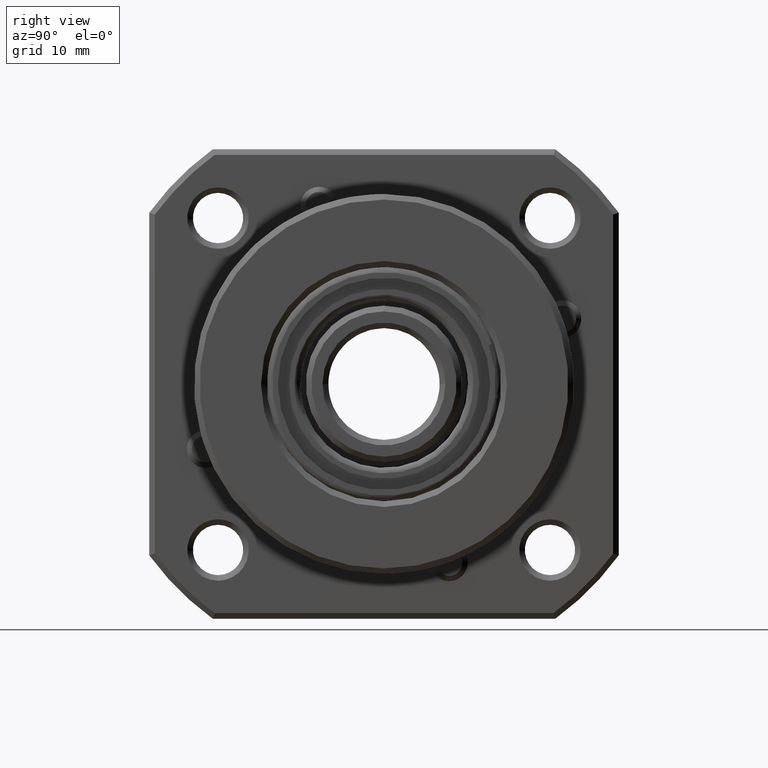
[diagram: clean part render]
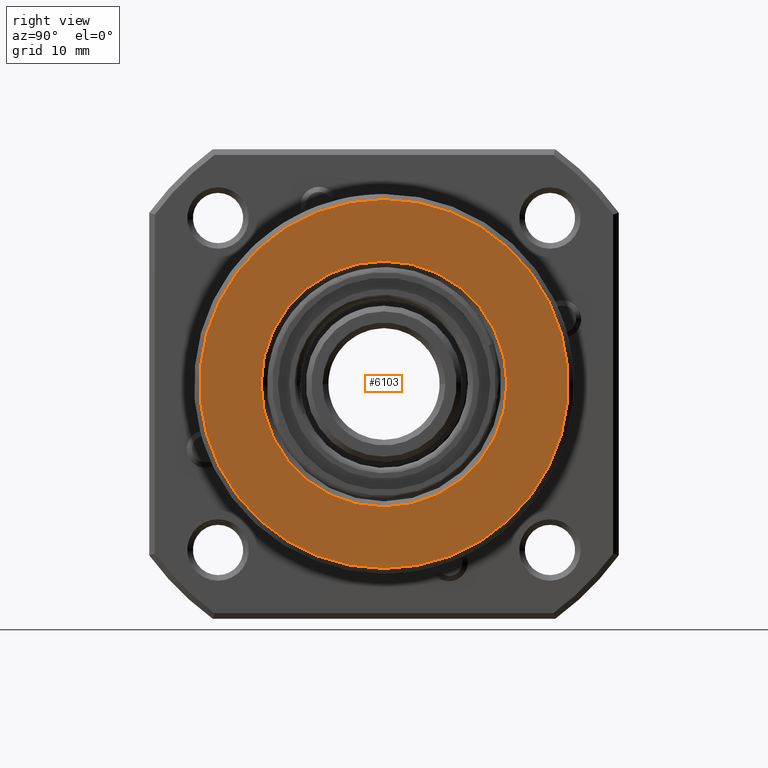
[diagram: same view with one face highlighted and labeled with its STEP entity id]
A machine part, right view. The second image highlights one B-rep face of the part: STEP entity #6103.
In plain terms, the highlighted planar face has unit normal (-1, 0, 0).
Its self-contained STEP definition (entity closure, byte-faithful):
#488 = CARTESIAN_POINT ( 'NONE',  ( 23.00000000000000000, 0.0000000000000000000, 0.0000000000000000000 ) ) ;
#784 = CARTESIAN_POINT ( 'NONE',  ( 23.00000000000000000, 2.051283388571816900E-015, -16.50000000000000400 ) ) ;
#949 = DIRECTION ( 'NONE',  ( -1.000000000000000000, 0.0000000000000000000, 0.0000000000000000000 ) ) ;
#1179 = CIRCLE ( 'NONE', #4072, 16.50000000000000400 ) ;
#2024 = DIRECTION ( 'NONE',  ( 0.0000000000000000000, 0.0000000000000000000, 1.000000000000000000 ) ) ;
#2394 = ORIENTED_EDGE ( 'NONE', *, *, #19220, .F. ) ;
#2860 = ORIENTED_EDGE ( 'NONE', *, *, #17204, .F. ) ;
#4072 = AXIS2_PLACEMENT_3D ( 'NONE', #9893, #949, #11359 ) ;
#4320 = AXIS2_PLACEMENT_3D ( 'NONE', #5649, #15869, #7091 ) ;
#4429 = CARTESIAN_POINT ( 'NONE',  ( 23.00000000000000000, 17.00000000000000000, 0.0000000000000000000 ) ) ;
#5002 = AXIS2_PLACEMENT_3D ( 'NONE', #17368, #8574, #18838 ) ;
#5364 = AXIS2_PLACEMENT_3D ( 'NONE', #4429, #5960, #16201 ) ;
#5649 = CARTESIAN_POINT ( 'NONE',  ( 23.00000000000000000, 0.0000000000000000000, 0.0000000000000000000 ) ) ;
#5960 = DIRECTION ( 'NONE',  ( -1.000000000000000000, 0.0000000000000000000, 0.0000000000000000000 ) ) ;
#6103 = ADVANCED_FACE ( 'NONE', ( #18198, #10878 ), #14705, .F. ) ;
#6400 = VERTEX_POINT ( 'NONE', #784 ) ;
#6956 = VERTEX_POINT ( 'NONE', #17102 ) ;
#7091 = DIRECTION ( 'NONE',  ( 0.0000000000000000000, 0.0000000000000000000, -1.000000000000000000 ) ) ;
#7307 = ORIENTED_EDGE ( 'NONE', *, *, #16732, .F. ) ;
#7491 = CIRCLE ( 'NONE', #4320, 11.00000000000001400 ) ;
#7989 = EDGE_LOOP ( 'NONE', ( #2860, #2394 ) ) ;
#8159 = EDGE_LOOP ( 'NONE', ( #7307, #10748 ) ) ;
#8538 = VERTEX_POINT ( 'NONE', #9300 ) ;
#8574 = DIRECTION ( 'NONE',  ( 1.000000000000000000, 0.0000000000000000000, 0.0000000000000000000 ) ) ;
#8589 = VERTEX_POINT ( 'NONE', #13836 ) ;
#9300 = CARTESIAN_POINT ( 'NONE',  ( 23.00000000000000000, 0.0000000000000000000, -11.00000000000001600 ) ) ;
#9893 = CARTESIAN_POINT ( 'NONE',  ( 23.00000000000000000, 0.0000000000000000000, 0.0000000000000000000 ) ) ;
#10748 = ORIENTED_EDGE ( 'NONE', *, *, #14379, .F. ) ;
#10878 = FACE_BOUND ( 'NONE', #7989, .T. ) ;
#10929 = DIRECTION ( 'NONE',  ( -1.000000000000000000, 0.0000000000000000000, 0.0000000000000000000 ) ) ;
#11359 = DIRECTION ( 'NONE',  ( 0.0000000000000000000, 0.0000000000000000000, 1.000000000000000000 ) ) ;
#11506 = CIRCLE ( 'NONE', #11709, 16.50000000000000400 ) ;
#11709 = AXIS2_PLACEMENT_3D ( 'NONE', #488, #10929, #2024 ) ;
#13836 = CARTESIAN_POINT ( 'NONE',  ( 23.00000000000000000, 0.0000000000000000000, 16.50000000000000400 ) ) ;
#14379 = EDGE_CURVE ( 'NONE', #6400, #8589, #11506, .T. ) ;
#14705 = PLANE ( 'NONE',  #5364 ) ;
#15869 = DIRECTION ( 'NONE',  ( 1.000000000000000000, 0.0000000000000000000, 0.0000000000000000000 ) ) ;
#16201 = DIRECTION ( 'NONE',  ( 0.0000000000000000000, 0.0000000000000000000, 1.000000000000000000 ) ) ;
#16732 = EDGE_CURVE ( 'NONE', #8589, #6400, #1179, .T. ) ;
#17102 = CARTESIAN_POINT ( 'NONE',  ( 23.00000000000000000, 1.347111479062090600E-015, 11.00000000000001600 ) ) ;
#17204 = EDGE_CURVE ( 'NONE', #8538, #6956, #7491, .T. ) ;
#17368 = CARTESIAN_POINT ( 'NONE',  ( 23.00000000000000000, 0.0000000000000000000, 0.0000000000000000000 ) ) ;
#17764 = CIRCLE ( 'NONE', #5002, 11.00000000000001400 ) ;
#18198 = FACE_OUTER_BOUND ( 'NONE', #8159, .T. ) ;
#18838 = DIRECTION ( 'NONE',  ( 0.0000000000000000000, 0.0000000000000000000, -1.000000000000000000 ) ) ;
#19220 = EDGE_CURVE ( 'NONE', #6956, #8538, #17764, .T. ) ;